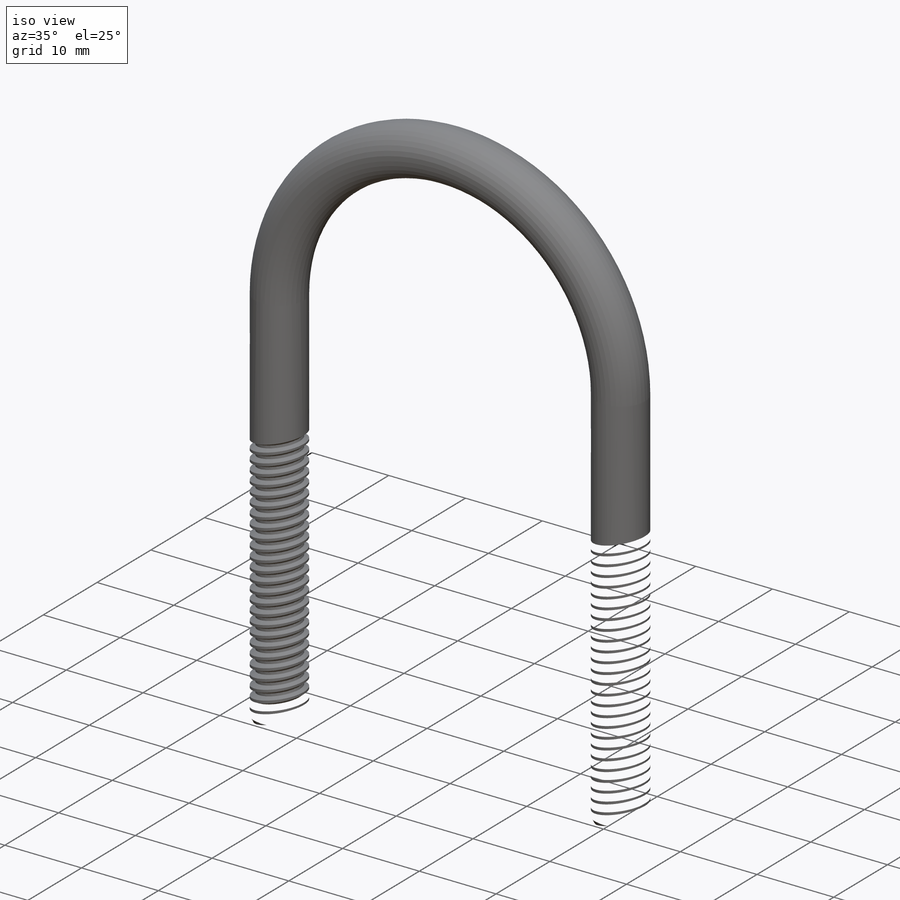
[diagram: iso view]
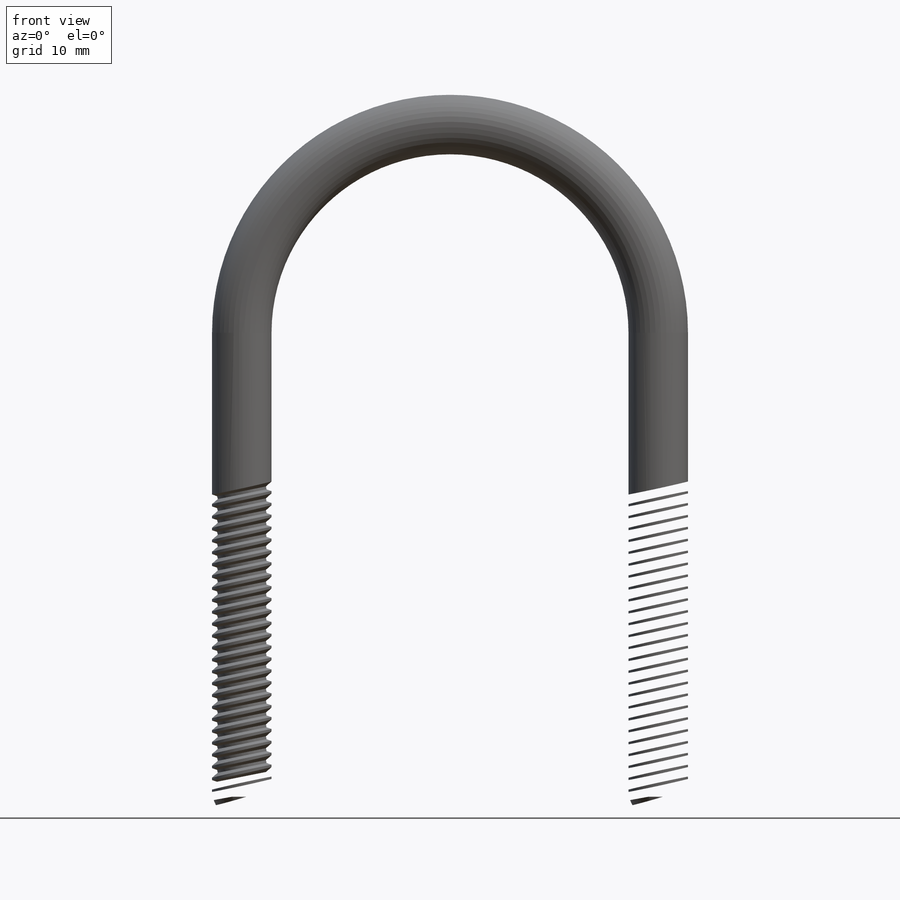
[diagram: front view]
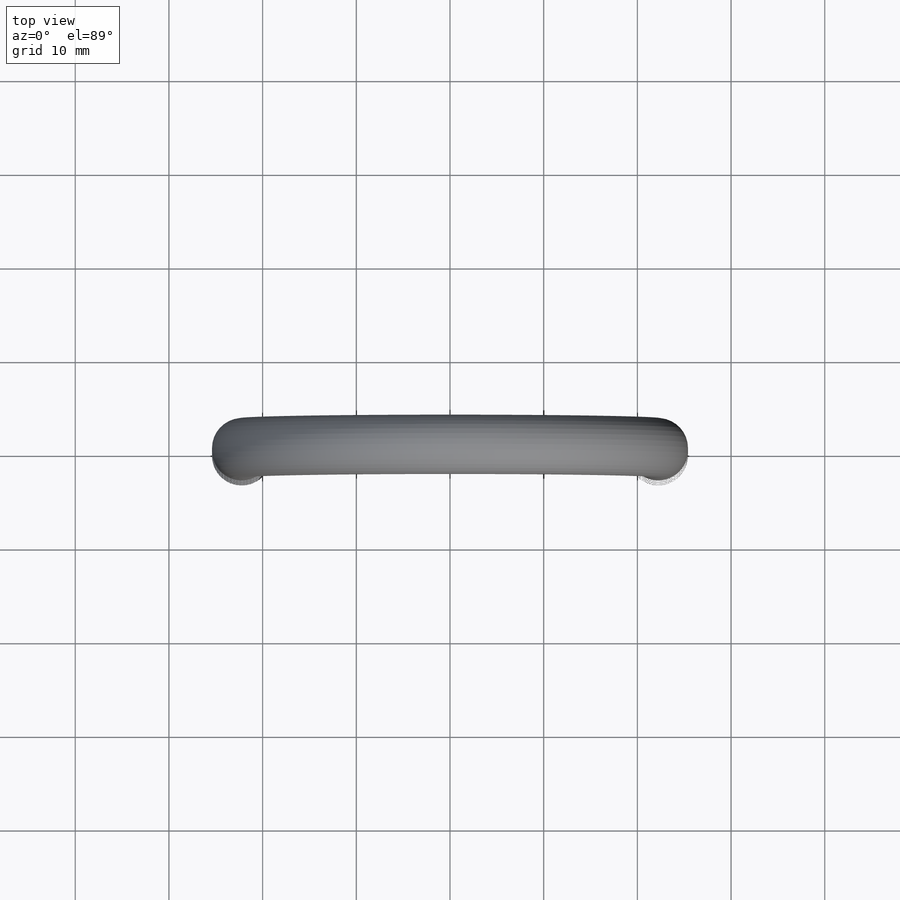
[diagram: top view]
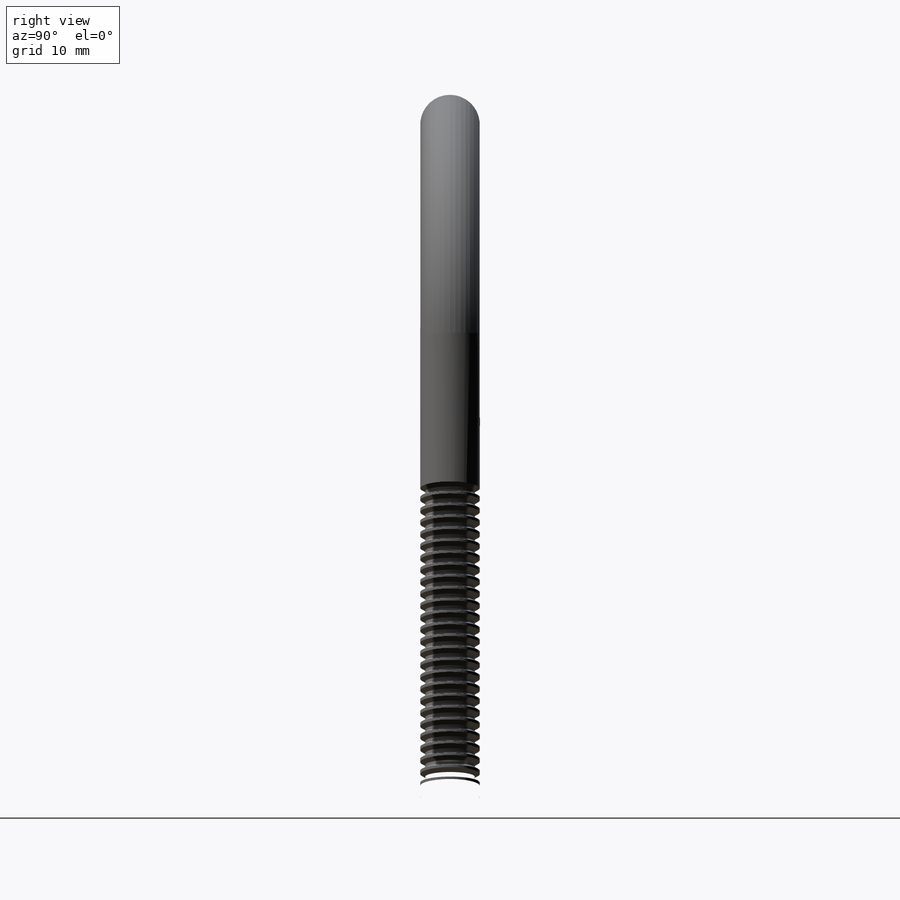
[diagram: right view]
SOLIDWORKS PART (.sldprt)
format: sldprt  version: not decoded by parser v0  size: 901,632 bytes
history: native  units: mm
features: sketch x8, cut_revolve x4, pattern_linear x2, extrude x2, material x1, sweep x1, plane x1, chamfer x1 (+12 scaffold rows collapsed)
feature tree (32):
  scaffold x12  (default folders/planes/origin — collapsed)
  material  "Material <not specified>"
  sketch  "Sketch1"  dims[ID=38.1mm Wire Dia=6.35mm Depth=69.85mm D1=44.45mm]
  sketch  "Sketch2"
  sweep  "Sweep1"
  sketch  "Sketch4"  dims[c1.D1=~1.368407mm c1.D2=~0.279276mm c1.D3=0.3175mm c1.Thread Pitch=1.27mm c2.D2=~0.15875mm c2.D1=~1.031875mm c3.D1=60.0deg c3.D4=1.27mm c3.Thread Length=34.925mm c3.D5=~2.450851mm]
  cut_revolve  "Cut-Revolve1"  Angle=360deg
  sketch  "Sketch5"  dims[c1.D1=~2.018391mm c2.D1=25.0deg]
  cut_revolve  "Cut-Revolve2"  Angle=360deg
  sketch  "Sketch6"
  cut_revolve  "Cut-Revolve3"  Angle=360deg
  pattern_linear  "LPattern2"  Count1=2 Count2=28 Spacing1=44.45mm Spacing2=1.27mm
  plane  "Plane1"  Offset=26.19375mm
  sketch  "Sketch7"  dims[D1=6.4008mm Nut Width=11.1125mm]
  extrude  "Extrude1"  Depth=5.55625mm Nut Height=5.55625mm
  sketch  "Sketch8"  dims[c1.D1=~0.641938mm c2.D1=45.0deg c2.D2=~0.564597mm c3.D2=25.0deg c3.D1=~0.79712mm c4.D1=25.0deg c4.D2=~0.700235mm c5.D2=45.0deg c6.D2=11.1125mm c6.D3=0.127mm c6.D4=0.508mm]
  cut_revolve  "Cut-Revolve4"  Angle=360deg
  chamfer  "Chamfer1"  Distance=0.127mm Angle=45deg
  pattern_linear  "LPattern3"  Count1=2 Count2=1 Spacing1=44.45mm Spacing2=50mm
  sketch  "Sketch9"  dims[D3=6.477mm Plate Width=19.05mm Plate Length=60.452mm]
  extrude  "Extrude2"  Depth=1.9812mm Plate Thickness=1.9812mm
decode coverage: 15 of 18 modeling features carry decoded parameters
note: ~ marks probable driven/reference dimensions
note: suppression state not decoded; provenance and decode notes live in map.json
